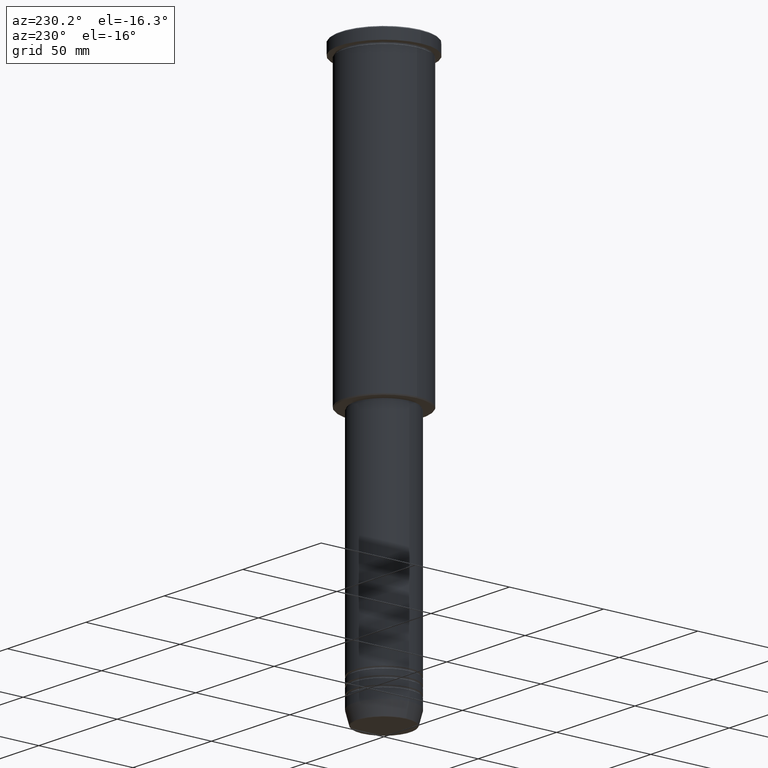
[diagram: clean part render]
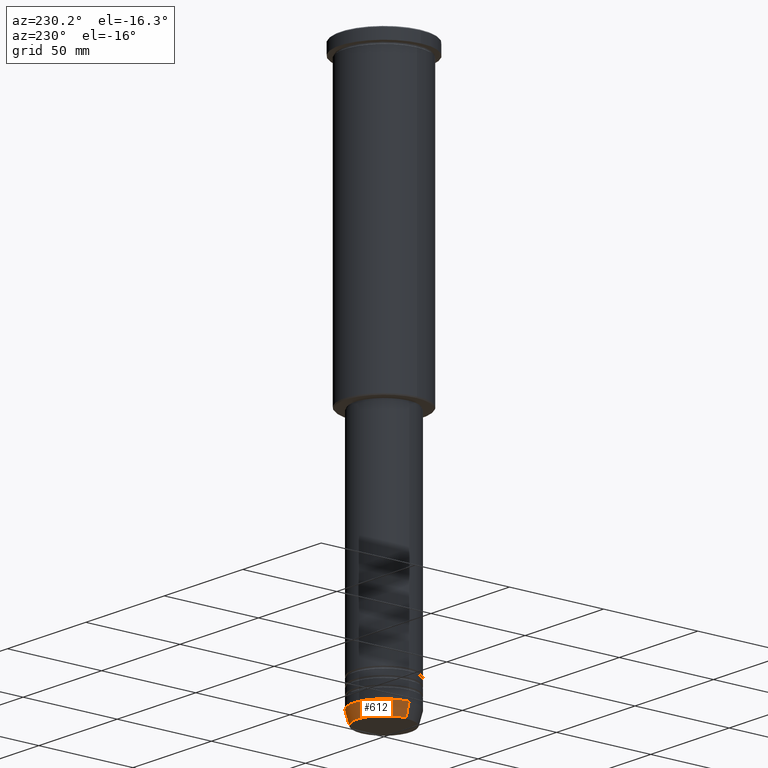
[diagram: same view with one face highlighted and labeled with its STEP entity id]
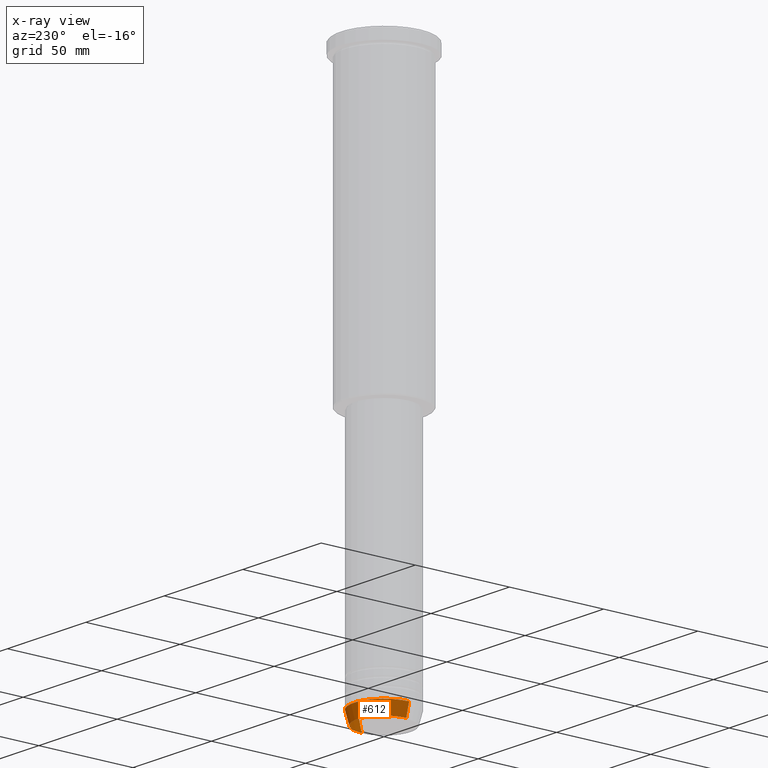
[diagram: x-ray of the same camera — body ghosted, the highlighted face saturated]
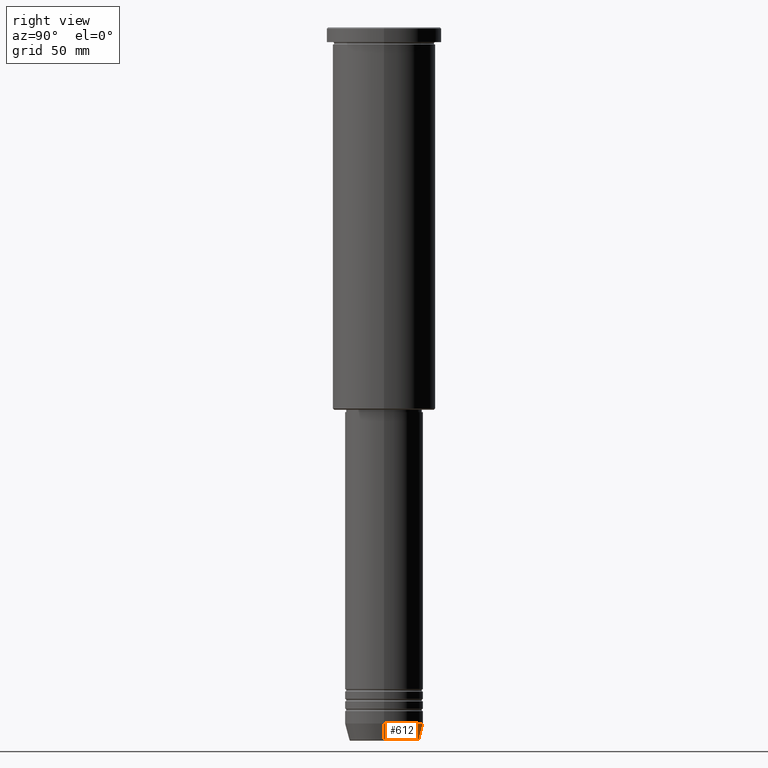
[diagram: same view with one face highlighted and labeled with its STEP entity id]
A machine part, auxiliary view. The second image highlights one B-rep face of the part: STEP entity #612.
The next image is the same camera in x-ray: the body ghosted, the highlighted face saturated — about 0% of this face is hidden behind the body in this view.
A second angle (right view) of the same face is appended — the face is thin or edge-on in the first view.
In plain terms, the highlighted conical surface has half-angle 15 deg.
Its self-contained STEP definition (entity closure, byte-faithful):
#10 = CONICAL_SURFACE ( 'NONE', #1083, 16.00000000000000000, 0.2617993877991500740 ) ;
#53 = VERTEX_POINT ( 'NONE', #152 ) ;
#134 = ORIENTED_EDGE ( 'NONE', *, *, #663, .F. ) ;
#144 = DIRECTION ( 'NONE',  ( -0.2588190451025213501, 3.169619151431772337E-17, 0.9659258262890680902 ) ) ;
#152 = CARTESIAN_POINT ( 'NONE',  ( 14.22365507213718772, 0.000000000000000000, -290.6294095225512706 ) ) ;
#194 = EDGE_CURVE ( 'NONE', #655, #588, #523, .T. ) ;
#228 = DIRECTION ( 'NONE',  ( 1.000000000000000000, 0.000000000000000000, 0.000000000000000000 ) ) ;
#270 = DIRECTION ( 'NONE',  ( 0.2588190451025213501, 0.000000000000000000, 0.9659258262890680902 ) ) ;
#277 = VECTOR ( 'NONE', #270, 1000.000000000000000 ) ;
#287 = ORIENTED_EDGE ( 'NONE', *, *, #194, .T. ) ;
#331 = CARTESIAN_POINT ( 'NONE',  ( 0.000000000000000000, 0.000000000000000000, -290.6294095225512706 ) ) ;
#351 = CARTESIAN_POINT ( 'NONE',  ( -16.00000000000000000, 1.959434878635765131E-15, -284.0000000000000568 ) ) ;
#433 = ORIENTED_EDGE ( 'NONE', *, *, #1124, .F. ) ;
#437 = FACE_OUTER_BOUND ( 'NONE', #797, .T. ) ;
#469 = CARTESIAN_POINT ( 'NONE',  ( -16.00000000000000000, 1.959434878635765131E-15, -284.0000000000000568 ) ) ;
#523 = LINE ( 'NONE', #469, #864 ) ;
#588 = VERTEX_POINT ( 'NONE', #351 ) ;
#600 = LINE ( 'NONE', #737, #277 ) ;
#612 = ADVANCED_FACE ( 'NONE', ( #437 ), #10, .T. ) ;
#617 = DIRECTION ( 'NONE',  ( -0.000000000000000000, -0.000000000000000000, 1.000000000000000000 ) ) ;
#635 = EDGE_CURVE ( 'NONE', #53, #655, #865, .T. ) ;
#655 = VERTEX_POINT ( 'NONE', #859 ) ;
#663 = EDGE_CURVE ( 'NONE', #901, #588, #682, .T. ) ;
#682 = CIRCLE ( 'NONE', #1106, 16.00000000000000000 ) ;
#737 = CARTESIAN_POINT ( 'NONE',  ( 16.00000000000000000, 0.000000000000000000, -284.0000000000000568 ) ) ;
#797 = EDGE_LOOP ( 'NONE', ( #994, #287, #134, #433 ) ) ;
#810 = CARTESIAN_POINT ( 'NONE',  ( 16.00000000000000000, 0.000000000000000000, -284.0000000000000568 ) ) ;
#816 = CARTESIAN_POINT ( 'NONE',  ( 0.000000000000000000, 0.000000000000000000, -284.0000000000000568 ) ) ;
#859 = CARTESIAN_POINT ( 'NONE',  ( -14.22365507213718772, 1.850665122131323337E-15, -290.6294095225512706 ) ) ;
#864 = VECTOR ( 'NONE', #144, 1000.000000000000000 ) ;
#865 = CIRCLE ( 'NONE', #1027, 14.22365507213718772 ) ;
#881 = DIRECTION ( 'NONE',  ( 1.000000000000000000, 0.000000000000000000, 0.000000000000000000 ) ) ;
#901 = VERTEX_POINT ( 'NONE', #810 ) ;
#947 = CARTESIAN_POINT ( 'NONE',  ( 0.000000000000000000, 0.000000000000000000, -284.0000000000000568 ) ) ;
#978 = DIRECTION ( 'NONE',  ( 1.000000000000000000, 0.000000000000000000, 0.000000000000000000 ) ) ;
#994 = ORIENTED_EDGE ( 'NONE', *, *, #635, .T. ) ;
#1027 = AXIS2_PLACEMENT_3D ( 'NONE', #331, #617, #978 ) ;
#1050 = DIRECTION ( 'NONE',  ( -0.000000000000000000, -0.000000000000000000, 1.000000000000000000 ) ) ;
#1083 = AXIS2_PLACEMENT_3D ( 'NONE', #816, #1162, #881 ) ;
#1106 = AXIS2_PLACEMENT_3D ( 'NONE', #947, #1050, #228 ) ;
#1124 = EDGE_CURVE ( 'NONE', #53, #901, #600, .T. ) ;
#1162 = DIRECTION ( 'NONE',  ( -0.000000000000000000, -0.000000000000000000, 1.000000000000000000 ) ) ;